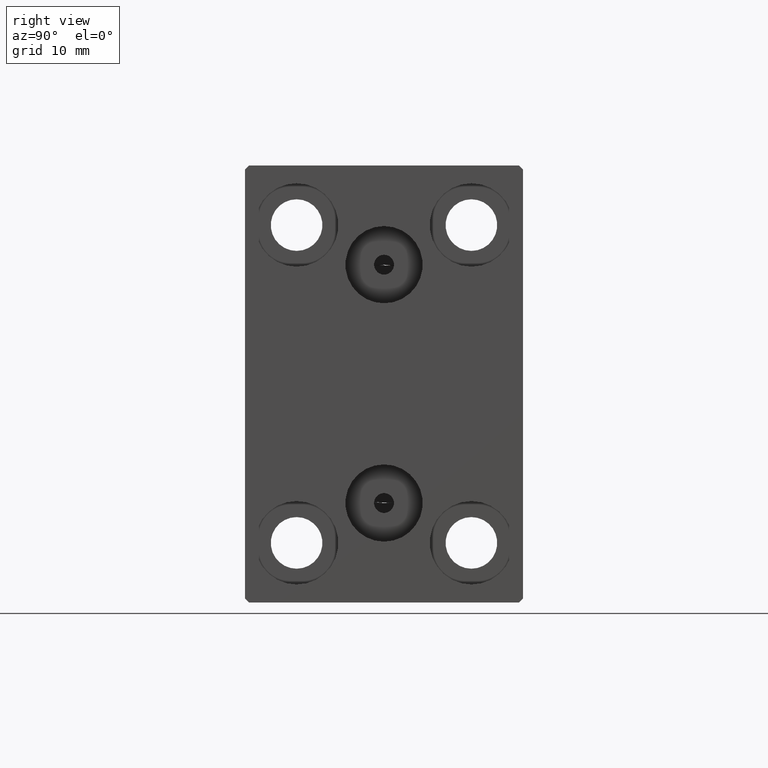
[diagram: clean part render]
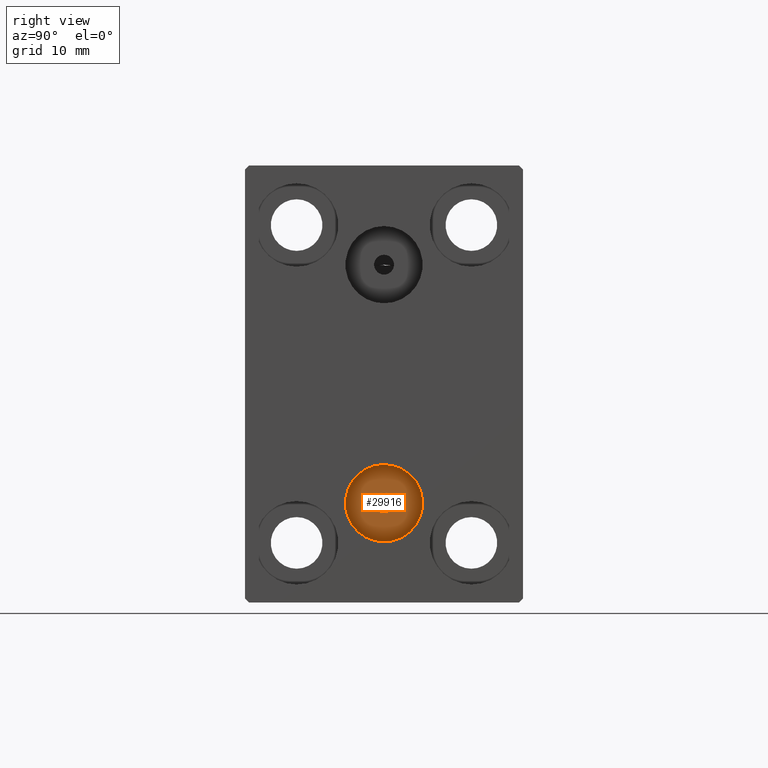
[diagram: same view with one face highlighted and labeled with its STEP entity id]
A machine part, right view. The second image highlights one B-rep face of the part: STEP entity #29916.
In plain terms, the highlighted planar face has unit normal (-1, 0, 0).
Its self-contained STEP definition (entity closure, byte-faithful):
#245 = VERTEX_POINT ( 'NONE', #6648 ) ;
#287 = EDGE_CURVE ( 'NONE', #34944, #13127, #1839, .T. ) ;
#546 = CARTESIAN_POINT ( 'NONE',  ( 46.00000000000000000, -1.734723475976807094E-15, -15.00000000000000000 ) ) ;
#763 = DIRECTION ( 'NONE',  ( 0.000000000000000000, 0.000000000000000000, 1.000000000000000000 ) ) ;
#1839 = CIRCLE ( 'NONE', #26636, 1.250000000000001110 ) ;
#1863 = CARTESIAN_POINT ( 'NONE',  ( 46.00000000000000000, -1.734723475976807094E-15, -15.00000000000000000 ) ) ;
#3031 = ORIENTED_EDGE ( 'NONE', *, *, #7665, .F. ) ;
#4084 = DIRECTION ( 'NONE',  ( 1.000000000000000000, 0.000000000000000000, -0.000000000000000000 ) ) ;
#4271 = CARTESIAN_POINT ( 'NONE',  ( 46.00000000000000000, -1.836970198721029589E-15, -16.25000000000000000 ) ) ;
#5315 = AXIS2_PLACEMENT_3D ( 'NONE', #1863, #14342, #27892 ) ;
#6106 = EDGE_LOOP ( 'NONE', ( #13011, #3031 ) ) ;
#6648 = CARTESIAN_POINT ( 'NONE',  ( 46.00000000000000000, -1.139545131591193817E-15, -10.14000000000000057 ) ) ;
#7665 = EDGE_CURVE ( 'NONE', #13127, #34944, #8997, .T. ) ;
#8997 = CIRCLE ( 'NONE', #31695, 1.250000000000001110 ) ;
#9512 = DIRECTION ( 'NONE',  ( 1.000000000000000000, 0.000000000000000000, -0.000000000000000000 ) ) ;
#9756 = AXIS2_PLACEMENT_3D ( 'NONE', #546, #4084, #763 ) ;
#10653 = EDGE_CURVE ( 'NONE', #31470, #245, #38833, .T. ) ;
#11239 = FACE_BOUND ( 'NONE', #6106, .T. ) ;
#12650 = DIRECTION ( 'NONE',  ( 0.000000000000000000, 0.000000000000000000, -1.000000000000000000 ) ) ;
#13011 = ORIENTED_EDGE ( 'NONE', *, *, #287, .F. ) ;
#13127 = VERTEX_POINT ( 'NONE', #41038 ) ;
#14342 = DIRECTION ( 'NONE',  ( -1.000000000000000000, -0.000000000000000000, 0.000000000000000000 ) ) ;
#15348 = AXIS2_PLACEMENT_3D ( 'NONE', #16194, #9512, #22632 ) ;
#16194 = CARTESIAN_POINT ( 'NONE',  ( 46.00000000000000000, -1.734723475976807094E-15, -15.00000000000000000 ) ) ;
#20962 = DIRECTION ( 'NONE',  ( 1.000000000000000000, 0.000000000000000000, 0.000000000000000000 ) ) ;
#22447 = CIRCLE ( 'NONE', #15348, 4.859999999999999432 ) ;
#22632 = DIRECTION ( 'NONE',  ( 0.000000000000000000, 0.000000000000000000, 1.000000000000000000 ) ) ;
#23310 = CARTESIAN_POINT ( 'NONE',  ( 46.00000000000000000, -1.836970198721029589E-15, -15.00000000000000000 ) ) ;
#25599 = PLANE ( 'NONE',  #5315 ) ;
#26636 = AXIS2_PLACEMENT_3D ( 'NONE', #23310, #29529, #12650 ) ;
#27632 = DIRECTION ( 'NONE',  ( 0.000000000000000000, 0.000000000000000000, -1.000000000000000000 ) ) ;
#27642 = CARTESIAN_POINT ( 'NONE',  ( 46.00000000000000000, -1.734723475976807094E-15, -19.85999999999999943 ) ) ;
#27892 = DIRECTION ( 'NONE',  ( 0.000000000000000000, 0.000000000000000000, 1.000000000000000000 ) ) ;
#28973 = ORIENTED_EDGE ( 'NONE', *, *, #39426, .T. ) ;
#29529 = DIRECTION ( 'NONE',  ( 1.000000000000000000, 0.000000000000000000, 0.000000000000000000 ) ) ;
#29916 = ADVANCED_FACE ( 'NONE', ( #11239, #41654 ), #25599, .F. ) ;
#30954 = CARTESIAN_POINT ( 'NONE',  ( 46.00000000000000000, -1.836970198721029589E-15, -15.00000000000000000 ) ) ;
#31470 = VERTEX_POINT ( 'NONE', #27642 ) ;
#31695 = AXIS2_PLACEMENT_3D ( 'NONE', #30954, #20962, #27632 ) ;
#31825 = EDGE_LOOP ( 'NONE', ( #35525, #28973 ) ) ;
#34944 = VERTEX_POINT ( 'NONE', #4271 ) ;
#35525 = ORIENTED_EDGE ( 'NONE', *, *, #10653, .T. ) ;
#38833 = CIRCLE ( 'NONE', #9756, 4.859999999999999432 ) ;
#39426 = EDGE_CURVE ( 'NONE', #245, #31470, #22447, .T. ) ;
#41038 = CARTESIAN_POINT ( 'NONE',  ( 46.00000000000000000, -1.683889348827610456E-15, -13.74999999999999822 ) ) ;
#41654 = FACE_OUTER_BOUND ( 'NONE', #31825, .T. ) ;